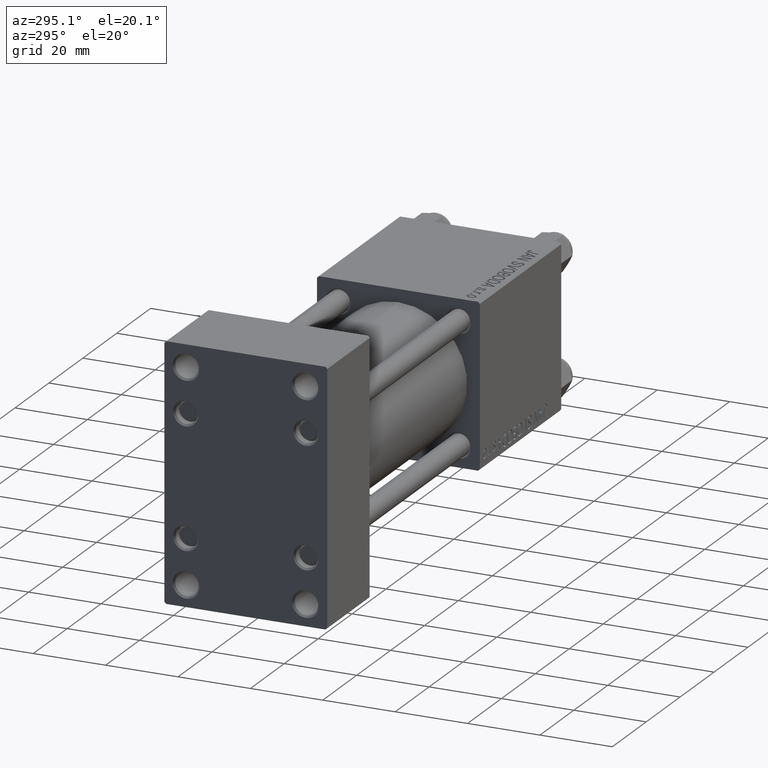
[diagram: clean part render]
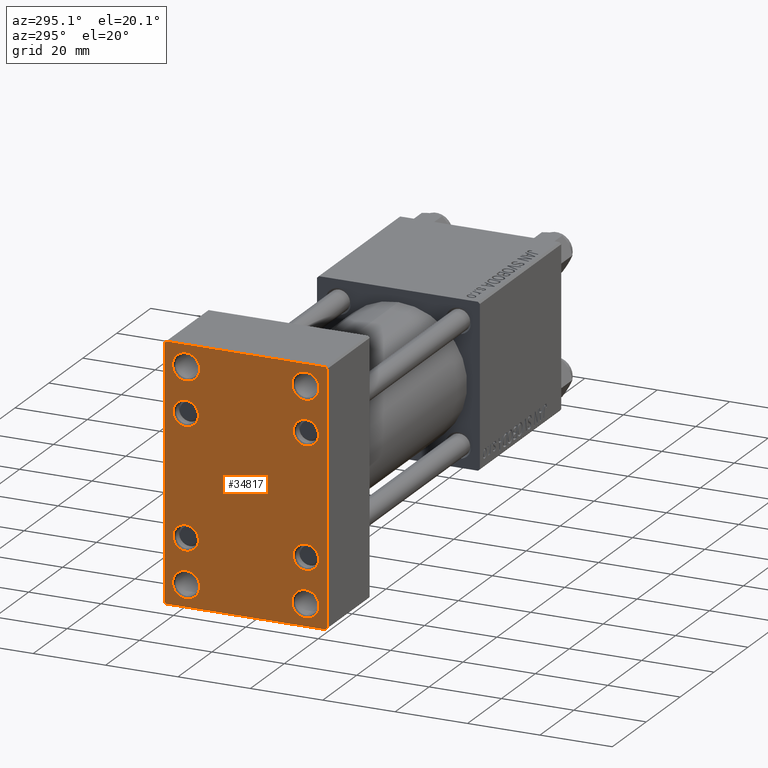
[diagram: same view with one face highlighted and labeled with its STEP entity id]
A machine part, auxiliary view. The second image highlights one B-rep face of the part: STEP entity #34817.
In plain terms, the highlighted planar face has unit normal (-1, 0, 0).
Its self-contained STEP definition (entity closure, byte-faithful):
#244 = VECTOR ( 'NONE', #48808, 999.9999999999998863 ) ;
#528 = AXIS2_PLACEMENT_3D ( 'NONE', #23081, #37487, #30916 ) ;
#1004 = EDGE_CURVE ( 'NONE', #19873, #20252, #13218, .T. ) ;
#1163 = CARTESIAN_POINT ( 'NONE',  ( 0.000000000000000000, 16.59999999999999787, -16.60000000000000497 ) ) ;
#1315 = CARTESIAN_POINT ( 'NONE',  ( 0.000000000000000000, 0.000000000000000000, 0.000000000000000000 ) ) ;
#1409 = EDGE_CURVE ( 'NONE', #20252, #19873, #29366, .T. ) ;
#1600 = DIRECTION ( 'NONE',  ( 1.000000000000000000, -0.000000000000000000, 0.000000000000000000 ) ) ;
#1625 = AXIS2_PLACEMENT_3D ( 'NONE', #1163, #47402, #13049 ) ;
#1778 = CARTESIAN_POINT ( 'NONE',  ( 0.000000000000000000, 16.59999999999999787, 20.10000000000000142 ) ) ;
#1871 = DIRECTION ( 'NONE',  ( 0.000000000000000000, 0.000000000000000000, 1.000000000000000000 ) ) ;
#2063 = EDGE_CURVE ( 'NONE', #39031, #30256, #40263, .T. ) ;
#2594 = DIRECTION ( 'NONE',  ( 1.000000000000000000, -0.000000000000000000, 0.000000000000000000 ) ) ;
#2789 = EDGE_CURVE ( 'NONE', #29264, #18818, #26204, .T. ) ;
#3220 = AXIS2_PLACEMENT_3D ( 'NONE', #28858, #48054, #44273 ) ;
#3385 = DIRECTION ( 'NONE',  ( 0.000000000000000000, 0.000000000000000000, 1.000000000000000000 ) ) ;
#3412 = CARTESIAN_POINT ( 'NONE',  ( 0.000000000000000000, -16.59999999999999076, 16.60000000000000853 ) ) ;
#5034 = ORIENTED_EDGE ( 'NONE', *, *, #19249, .T. ) ;
#5350 = AXIS2_PLACEMENT_3D ( 'NONE', #41015, #5914, #1871 ) ;
#5766 = AXIS2_PLACEMENT_3D ( 'NONE', #1315, #20270, #11958 ) ;
#5914 = DIRECTION ( 'NONE',  ( 1.000000000000000000, -0.000000000000000000, 0.000000000000000000 ) ) ;
#6127 = LINE ( 'NONE', #36942, #34903 ) ;
#6290 = ORIENTED_EDGE ( 'NONE', *, *, #22669, .T. ) ;
#6408 = ORIENTED_EDGE ( 'NONE', *, *, #2063, .F. ) ;
#6617 = DIRECTION ( 'NONE',  ( 1.000000000000000000, -0.000000000000000000, 0.000000000000000000 ) ) ;
#6722 = CARTESIAN_POINT ( 'NONE',  ( 0.000000000000000000, 28.49999999999984013, -28.50000000000024158 ) ) ;
#7017 = CIRCLE ( 'NONE', #15046, 3.749999999999985789 ) ;
#7275 = EDGE_CURVE ( 'NONE', #14666, #14534, #7017, .T. ) ;
#7386 = LINE ( 'NONE', #29609, #244 ) ;
#7416 = CARTESIAN_POINT ( 'NONE',  ( 0.000000000000000000, 21.99999999999999645, -34.99999999999999289 ) ) ;
#7418 = ORIENTED_EDGE ( 'NONE', *, *, #36944, .T. ) ;
#7601 = AXIS2_PLACEMENT_3D ( 'NONE', #39406, #11890, #15654 ) ;
#8167 = FACE_BOUND ( 'NONE', #15717, .T. ) ;
#8401 = ORIENTED_EDGE ( 'NONE', *, *, #1004, .T. ) ;
#8458 = AXIS2_PLACEMENT_3D ( 'NONE', #30203, #1600, #21049 ) ;
#8639 = VERTEX_POINT ( 'NONE', #18510 ) ;
#8658 = FACE_OUTER_BOUND ( 'NONE', #38750, .T. ) ;
#8856 = VECTOR ( 'NONE', #26176, 999.9999999999998863 ) ;
#8891 = AXIS2_PLACEMENT_3D ( 'NONE', #18490, #2594, #48810 ) ;
#8917 = ORIENTED_EDGE ( 'NONE', *, *, #34287, .T. ) ;
#8974 = VERTEX_POINT ( 'NONE', #42210 ) ;
#9071 = EDGE_CURVE ( 'NONE', #30640, #30256, #12890, .T. ) ;
#9201 = ORIENTED_EDGE ( 'NONE', *, *, #43603, .T. ) ;
#9262 = EDGE_LOOP ( 'NONE', ( #17535, #9201 ) ) ;
#9328 = EDGE_CURVE ( 'NONE', #32379, #8639, #27146, .T. ) ;
#9731 = CARTESIAN_POINT ( 'NONE',  ( 0.000000000000000000, -22.49999999999999645, 35.00000000000000000 ) ) ;
#9769 = ORIENTED_EDGE ( 'NONE', *, *, #30290, .T. ) ;
#9796 = VERTEX_POINT ( 'NONE', #24268 ) ;
#9972 = DIRECTION ( 'NONE',  ( 0.000000000000000000, 0.000000000000000000, -1.000000000000000000 ) ) ;
#10015 = AXIS2_PLACEMENT_3D ( 'NONE', #37520, #22107, #10252 ) ;
#10252 = DIRECTION ( 'NONE',  ( 0.000000000000000000, 0.000000000000000000, 1.000000000000000000 ) ) ;
#11341 = CARTESIAN_POINT ( 'NONE',  ( 0.000000000000000000, -22.49999999999999645, -34.50000000000000000 ) ) ;
#11444 = ORIENTED_EDGE ( 'NONE', *, *, #38902, .T. ) ;
#11451 = EDGE_CURVE ( 'NONE', #25414, #41319, #36838, .T. ) ;
#11479 = EDGE_LOOP ( 'NONE', ( #42075, #26060 ) ) ;
#11890 = DIRECTION ( 'NONE',  ( 1.000000000000000000, -0.000000000000000000, 0.000000000000000000 ) ) ;
#11958 = DIRECTION ( 'NONE',  ( -0.000000000000000000, 0.000000000000000000, 1.000000000000000000 ) ) ;
#12890 = LINE ( 'NONE', #32326, #40011 ) ;
#13049 = DIRECTION ( 'NONE',  ( 0.000000000000000000, 0.000000000000000000, 1.000000000000000000 ) ) ;
#13218 = CIRCLE ( 'NONE', #10015, 3.749999999999989342 ) ;
#13408 = CARTESIAN_POINT ( 'NONE',  ( 0.000000000000000000, 16.49999999999999289, 32.74999999999999289 ) ) ;
#13972 = CIRCLE ( 'NONE', #33340, 3.749999999999985789 ) ;
#14045 = AXIS2_PLACEMENT_3D ( 'NONE', #26964, #31001, #42368 ) ;
#14534 = VERTEX_POINT ( 'NONE', #39183 ) ;
#14539 = ORIENTED_EDGE ( 'NONE', *, *, #22548, .F. ) ;
#14666 = VERTEX_POINT ( 'NONE', #32087 ) ;
#14692 = DIRECTION ( 'NONE',  ( 0.000000000000000000, 0.000000000000000000, 1.000000000000000000 ) ) ;
#15046 = AXIS2_PLACEMENT_3D ( 'NONE', #44817, #40534, #17282 ) ;
#15081 = DIRECTION ( 'NONE',  ( 0.000000000000000000, -0.7071067811865426878, 0.7071067811865524577 ) ) ;
#15494 = ORIENTED_EDGE ( 'NONE', *, *, #43241, .T. ) ;
#15654 = DIRECTION ( 'NONE',  ( 0.000000000000000000, 0.000000000000000000, 1.000000000000000000 ) ) ;
#15657 = CARTESIAN_POINT ( 'NONE',  ( 0.000000000000000000, 22.00000000000000355, 35.00000000000000711 ) ) ;
#15717 = EDGE_LOOP ( 'NONE', ( #8917, #42203 ) ) ;
#16078 = LINE ( 'NONE', #19382, #32799 ) ;
#16232 = FACE_BOUND ( 'NONE', #11479, .T. ) ;
#16858 = CARTESIAN_POINT ( 'NONE',  ( 0.000000000000000000, 22.50000000000000355, -34.49999999999999289 ) ) ;
#17076 = ORIENTED_EDGE ( 'NONE', *, *, #21140, .T. ) ;
#17227 = CARTESIAN_POINT ( 'NONE',  ( 0.000000000000000000, -21.99999999999998934, 35.00000000000000000 ) ) ;
#17282 = DIRECTION ( 'NONE',  ( 0.000000000000000000, 0.000000000000000000, 1.000000000000000000 ) ) ;
#17535 = ORIENTED_EDGE ( 'NONE', *, *, #11451, .T. ) ;
#17744 = CIRCLE ( 'NONE', #29040, 3.499999999999996003 ) ;
#17747 = CIRCLE ( 'NONE', #8891, 3.750000000000003553 ) ;
#18024 = EDGE_LOOP ( 'NONE', ( #8401, #22881 ) ) ;
#18450 = DIRECTION ( 'NONE',  ( 1.000000000000000000, -0.000000000000000000, 0.000000000000000000 ) ) ;
#18490 = CARTESIAN_POINT ( 'NONE',  ( 0.000000000000000000, 16.49999999999999289, 28.99999999999998934 ) ) ;
#18510 = CARTESIAN_POINT ( 'NONE',  ( 0.000000000000000000, 16.59999999999999787, 13.10000000000000675 ) ) ;
#18630 = CARTESIAN_POINT ( 'NONE',  ( 0.000000000000000000, 16.49999999999999289, -29.00000000000000711 ) ) ;
#18672 = CARTESIAN_POINT ( 'NONE',  ( 0.000000000000000000, -16.59999999999999076, -20.10000000000000497 ) ) ;
#18703 = CARTESIAN_POINT ( 'NONE',  ( 0.000000000000000000, -16.50000000000000711, -29.00000000000000711 ) ) ;
#18751 = ORIENTED_EDGE ( 'NONE', *, *, #49953, .T. ) ;
#18808 = CIRCLE ( 'NONE', #37380, 3.499999999999996003 ) ;
#18818 = VERTEX_POINT ( 'NONE', #31338 ) ;
#18877 = CARTESIAN_POINT ( 'NONE',  ( 0.000000000000000000, -16.59999999999999076, -16.60000000000000853 ) ) ;
#18879 = EDGE_CURVE ( 'NONE', #26214, #45287, #45620, .T. ) ;
#19093 = VERTEX_POINT ( 'NONE', #40283 ) ;
#19249 = EDGE_CURVE ( 'NONE', #19403, #25049, #17747, .T. ) ;
#19382 = CARTESIAN_POINT ( 'NONE',  ( 0.000000000000000000, -28.50000000000015632, -28.49999999999976197 ) ) ;
#19403 = VERTEX_POINT ( 'NONE', #13408 ) ;
#19873 = VERTEX_POINT ( 'NONE', #44430 ) ;
#20015 = FACE_BOUND ( 'NONE', #33599, .T. ) ;
#20032 = EDGE_CURVE ( 'NONE', #19093, #27622, #34707, .T. ) ;
#20252 = VERTEX_POINT ( 'NONE', #22099 ) ;
#20270 = DIRECTION ( 'NONE',  ( -1.000000000000000000, 0.000000000000000000, -0.000000000000000000 ) ) ;
#20320 = DIRECTION ( 'NONE',  ( 0.000000000000000000, -1.000000000000000000, -1.541976423090495387E-16 ) ) ;
#20334 = ORIENTED_EDGE ( 'NONE', *, *, #9328, .T. ) ;
#20940 = CIRCLE ( 'NONE', #3220, 3.750000000000003553 ) ;
#21049 = DIRECTION ( 'NONE',  ( 0.000000000000000000, 0.000000000000000000, 1.000000000000000000 ) ) ;
#21140 = EDGE_CURVE ( 'NONE', #9796, #26214, #26149, .T. ) ;
#22099 = CARTESIAN_POINT ( 'NONE',  ( 0.000000000000000000, -16.50000000000000711, 25.25000000000000000 ) ) ;
#22107 = DIRECTION ( 'NONE',  ( 1.000000000000000000, -0.000000000000000000, 0.000000000000000000 ) ) ;
#22548 = EDGE_CURVE ( 'NONE', #30640, #28714, #24627, .T. ) ;
#22669 = EDGE_CURVE ( 'NONE', #26966, #25596, #17744, .T. ) ;
#22881 = ORIENTED_EDGE ( 'NONE', *, *, #1409, .T. ) ;
#23081 = CARTESIAN_POINT ( 'NONE',  ( 0.000000000000000000, 16.59999999999999787, 16.60000000000000497 ) ) ;
#23105 = CIRCLE ( 'NONE', #528, 3.499999999999996003 ) ;
#23507 = CARTESIAN_POINT ( 'NONE',  ( 0.000000000000000000, -16.59999999999999076, 13.10000000000001030 ) ) ;
#24064 = PLANE ( 'NONE',  #5766 ) ;
#24268 = CARTESIAN_POINT ( 'NONE',  ( 0.000000000000000000, 22.50000000000000355, 34.49999999999999289 ) ) ;
#24498 = ORIENTED_EDGE ( 'NONE', *, *, #9071, .T. ) ;
#24627 = LINE ( 'NONE', #9731, #49222 ) ;
#25049 = VERTEX_POINT ( 'NONE', #40399 ) ;
#25414 = VERTEX_POINT ( 'NONE', #35183 ) ;
#25596 = VERTEX_POINT ( 'NONE', #23507 ) ;
#25693 = CARTESIAN_POINT ( 'NONE',  ( 0.000000000000000000, -16.59999999999999076, 20.10000000000000853 ) ) ;
#26060 = ORIENTED_EDGE ( 'NONE', *, *, #38358, .T. ) ;
#26149 = LINE ( 'NONE', #49376, #37976 ) ;
#26176 = DIRECTION ( 'NONE',  ( -0.000000000000000000, -0.7071067811865525687, -0.7071067811865425767 ) ) ;
#26204 = CIRCLE ( 'NONE', #8458, 3.749999999999985789 ) ;
#26214 = VERTEX_POINT ( 'NONE', #16858 ) ;
#26964 = CARTESIAN_POINT ( 'NONE',  ( 0.000000000000000000, -16.59999999999999076, -16.60000000000000853 ) ) ;
#26966 = VERTEX_POINT ( 'NONE', #25693 ) ;
#26974 = CIRCLE ( 'NONE', #14045, 3.499999999999996003 ) ;
#27146 = CIRCLE ( 'NONE', #5350, 3.499999999999996003 ) ;
#27622 = VERTEX_POINT ( 'NONE', #46493 ) ;
#27857 = FACE_BOUND ( 'NONE', #9262, .T. ) ;
#28154 = CARTESIAN_POINT ( 'NONE',  ( 0.000000000000000000, 22.50000000000000355, 35.00000000000000711 ) ) ;
#28361 = EDGE_LOOP ( 'NONE', ( #20334, #18751 ) ) ;
#28714 = VERTEX_POINT ( 'NONE', #11341 ) ;
#28858 = CARTESIAN_POINT ( 'NONE',  ( 0.000000000000000000, 16.49999999999999289, 28.99999999999998934 ) ) ;
#29010 = DIRECTION ( 'NONE',  ( 1.000000000000000000, -0.000000000000000000, 0.000000000000000000 ) ) ;
#29040 = AXIS2_PLACEMENT_3D ( 'NONE', #30145, #45561, #3385 ) ;
#29264 = VERTEX_POINT ( 'NONE', #48238 ) ;
#29366 = CIRCLE ( 'NONE', #7601, 3.749999999999989342 ) ;
#29567 = AXIS2_PLACEMENT_3D ( 'NONE', #18877, #38088, #30499 ) ;
#29609 = CARTESIAN_POINT ( 'NONE',  ( 0.000000000000000000, 28.50000000000030909, 28.49999999999952038 ) ) ;
#29874 = EDGE_LOOP ( 'NONE', ( #5034, #9769 ) ) ;
#30145 = CARTESIAN_POINT ( 'NONE',  ( 0.000000000000000000, -16.59999999999999076, 16.60000000000000853 ) ) ;
#30203 = CARTESIAN_POINT ( 'NONE',  ( 0.000000000000000000, -16.50000000000000711, -29.00000000000000711 ) ) ;
#30256 = VERTEX_POINT ( 'NONE', #17227 ) ;
#30290 = EDGE_CURVE ( 'NONE', #25049, #19403, #20940, .T. ) ;
#30499 = DIRECTION ( 'NONE',  ( 0.000000000000000000, 0.000000000000000000, 1.000000000000000000 ) ) ;
#30560 = ORIENTED_EDGE ( 'NONE', *, *, #37832, .T. ) ;
#30640 = VERTEX_POINT ( 'NONE', #35270 ) ;
#30916 = DIRECTION ( 'NONE',  ( 0.000000000000000000, 0.000000000000000000, 1.000000000000000000 ) ) ;
#31001 = DIRECTION ( 'NONE',  ( 1.000000000000000000, -0.000000000000000000, 0.000000000000000000 ) ) ;
#31131 = ORIENTED_EDGE ( 'NONE', *, *, #18879, .T. ) ;
#31338 = CARTESIAN_POINT ( 'NONE',  ( 0.000000000000000000, -16.50000000000000711, -25.25000000000002132 ) ) ;
#31646 = FACE_BOUND ( 'NONE', #28361, .T. ) ;
#32087 = CARTESIAN_POINT ( 'NONE',  ( 0.000000000000000000, 16.49999999999999289, -25.25000000000002132 ) ) ;
#32184 = EDGE_LOOP ( 'NONE', ( #6290, #11444 ) ) ;
#32326 = CARTESIAN_POINT ( 'NONE',  ( -0.000000000000000000, -28.50000000000015632, 28.49999999999976197 ) ) ;
#32371 = CIRCLE ( 'NONE', #35630, 3.749999999999985789 ) ;
#32379 = VERTEX_POINT ( 'NONE', #1778 ) ;
#32799 = VECTOR ( 'NONE', #15081, 1000.000000000000000 ) ;
#33340 = AXIS2_PLACEMENT_3D ( 'NONE', #18630, #29010, #44429 ) ;
#33599 = EDGE_LOOP ( 'NONE', ( #38174, #15494 ) ) ;
#33968 = DIRECTION ( 'NONE',  ( 0.000000000000000000, 0.000000000000000000, -1.000000000000000000 ) ) ;
#34287 = EDGE_CURVE ( 'NONE', #18818, #29264, #32371, .T. ) ;
#34707 = CIRCLE ( 'NONE', #1625, 3.499999999999996003 ) ;
#34817 = ADVANCED_FACE ( 'NONE', ( #46560, #43266, #8167, #16232, #39730, #27857, #20015, #31646, #8658 ), #24064, .T. ) ;
#34903 = VECTOR ( 'NONE', #44770, 1000.000000000000000 ) ;
#34967 = AXIS2_PLACEMENT_3D ( 'NONE', #39146, #6617, #14692 ) ;
#35183 = CARTESIAN_POINT ( 'NONE',  ( 0.000000000000000000, -16.59999999999999076, -13.10000000000001030 ) ) ;
#35270 = CARTESIAN_POINT ( 'NONE',  ( 0.000000000000000000, -22.49999999999999645, 34.50000000000000000 ) ) ;
#35630 = AXIS2_PLACEMENT_3D ( 'NONE', #18703, #18450, #41443 ) ;
#36119 = DIRECTION ( 'NONE',  ( -0.000000000000000000, 0.7071067811865426878, 0.7071067811865524577 ) ) ;
#36436 = ORIENTED_EDGE ( 'NONE', *, *, #49819, .T. ) ;
#36838 = CIRCLE ( 'NONE', #29567, 3.499999999999996003 ) ;
#36942 = CARTESIAN_POINT ( 'NONE',  ( 0.000000000000000000, 22.50000000000000355, -34.99999999999999289 ) ) ;
#36944 = EDGE_CURVE ( 'NONE', #45287, #8974, #6127, .T. ) ;
#37380 = AXIS2_PLACEMENT_3D ( 'NONE', #3412, #49371, #38520 ) ;
#37487 = DIRECTION ( 'NONE',  ( 1.000000000000000000, -0.000000000000000000, 0.000000000000000000 ) ) ;
#37520 = CARTESIAN_POINT ( 'NONE',  ( 0.000000000000000000, -16.50000000000000711, 28.99999999999998934 ) ) ;
#37832 = EDGE_CURVE ( 'NONE', #39031, #9796, #7386, .T. ) ;
#37976 = VECTOR ( 'NONE', #33968, 1000.000000000000000 ) ;
#38088 = DIRECTION ( 'NONE',  ( 1.000000000000000000, -0.000000000000000000, 0.000000000000000000 ) ) ;
#38174 = ORIENTED_EDGE ( 'NONE', *, *, #20032, .T. ) ;
#38358 = EDGE_CURVE ( 'NONE', #14534, #14666, #13972, .T. ) ;
#38520 = DIRECTION ( 'NONE',  ( 0.000000000000000000, 0.000000000000000000, 1.000000000000000000 ) ) ;
#38750 = EDGE_LOOP ( 'NONE', ( #17076, #31131, #7418, #36436, #14539, #24498, #6408, #30560 ) ) ;
#38902 = EDGE_CURVE ( 'NONE', #25596, #26966, #18808, .T. ) ;
#39031 = VERTEX_POINT ( 'NONE', #15657 ) ;
#39146 = CARTESIAN_POINT ( 'NONE',  ( 0.000000000000000000, 16.59999999999999787, -16.60000000000000497 ) ) ;
#39183 = CARTESIAN_POINT ( 'NONE',  ( 0.000000000000000000, 16.49999999999999289, -32.74999999999999289 ) ) ;
#39406 = CARTESIAN_POINT ( 'NONE',  ( 0.000000000000000000, -16.50000000000000711, 28.99999999999998934 ) ) ;
#39730 = FACE_BOUND ( 'NONE', #32184, .T. ) ;
#40011 = VECTOR ( 'NONE', #36119, 1000.000000000000000 ) ;
#40263 = LINE ( 'NONE', #28154, #41489 ) ;
#40283 = CARTESIAN_POINT ( 'NONE',  ( 0.000000000000000000, 16.59999999999999787, -13.10000000000000675 ) ) ;
#40399 = CARTESIAN_POINT ( 'NONE',  ( 0.000000000000000000, 16.49999999999999289, 25.24999999999998934 ) ) ;
#40534 = DIRECTION ( 'NONE',  ( 1.000000000000000000, -0.000000000000000000, 0.000000000000000000 ) ) ;
#41015 = CARTESIAN_POINT ( 'NONE',  ( 0.000000000000000000, 16.59999999999999787, 16.60000000000000497 ) ) ;
#41319 = VERTEX_POINT ( 'NONE', #18672 ) ;
#41443 = DIRECTION ( 'NONE',  ( 0.000000000000000000, 0.000000000000000000, 1.000000000000000000 ) ) ;
#41489 = VECTOR ( 'NONE', #20320, 1000.000000000000000 ) ;
#42075 = ORIENTED_EDGE ( 'NONE', *, *, #7275, .T. ) ;
#42203 = ORIENTED_EDGE ( 'NONE', *, *, #2789, .T. ) ;
#42210 = CARTESIAN_POINT ( 'NONE',  ( 0.000000000000000000, -21.99999999999998934, -35.00000000000000000 ) ) ;
#42368 = DIRECTION ( 'NONE',  ( 0.000000000000000000, 0.000000000000000000, 1.000000000000000000 ) ) ;
#43241 = EDGE_CURVE ( 'NONE', #27622, #19093, #43879, .T. ) ;
#43266 = FACE_BOUND ( 'NONE', #18024, .T. ) ;
#43603 = EDGE_CURVE ( 'NONE', #41319, #25414, #26974, .T. ) ;
#43879 = CIRCLE ( 'NONE', #34967, 3.499999999999996003 ) ;
#44273 = DIRECTION ( 'NONE',  ( 0.000000000000000000, 0.000000000000000000, 1.000000000000000000 ) ) ;
#44429 = DIRECTION ( 'NONE',  ( 0.000000000000000000, 0.000000000000000000, 1.000000000000000000 ) ) ;
#44430 = CARTESIAN_POINT ( 'NONE',  ( 0.000000000000000000, -16.50000000000000711, 32.74999999999997868 ) ) ;
#44770 = DIRECTION ( 'NONE',  ( 0.000000000000000000, -1.000000000000000000, -1.541976423090495387E-16 ) ) ;
#44817 = CARTESIAN_POINT ( 'NONE',  ( 0.000000000000000000, 16.49999999999999289, -29.00000000000000711 ) ) ;
#45287 = VERTEX_POINT ( 'NONE', #7416 ) ;
#45561 = DIRECTION ( 'NONE',  ( 1.000000000000000000, -0.000000000000000000, 0.000000000000000000 ) ) ;
#45620 = LINE ( 'NONE', #6722, #8856 ) ;
#46493 = CARTESIAN_POINT ( 'NONE',  ( 0.000000000000000000, 16.59999999999999787, -20.10000000000000142 ) ) ;
#46560 = FACE_BOUND ( 'NONE', #29874, .T. ) ;
#47402 = DIRECTION ( 'NONE',  ( 1.000000000000000000, -0.000000000000000000, 0.000000000000000000 ) ) ;
#48054 = DIRECTION ( 'NONE',  ( 1.000000000000000000, -0.000000000000000000, 0.000000000000000000 ) ) ;
#48238 = CARTESIAN_POINT ( 'NONE',  ( 0.000000000000000000, -16.50000000000000711, -32.74999999999999289 ) ) ;
#48808 = DIRECTION ( 'NONE',  ( 0.000000000000000000, 0.7071067811865376918, -0.7071067811865574537 ) ) ;
#48810 = DIRECTION ( 'NONE',  ( 0.000000000000000000, 0.000000000000000000, 1.000000000000000000 ) ) ;
#49222 = VECTOR ( 'NONE', #9972, 1000.000000000000000 ) ;
#49371 = DIRECTION ( 'NONE',  ( 1.000000000000000000, -0.000000000000000000, 0.000000000000000000 ) ) ;
#49376 = CARTESIAN_POINT ( 'NONE',  ( 0.000000000000000000, 22.50000000000000355, 35.00000000000000711 ) ) ;
#49819 = EDGE_CURVE ( 'NONE', #8974, #28714, #16078, .T. ) ;
#49953 = EDGE_CURVE ( 'NONE', #8639, #32379, #23105, .T. ) ;